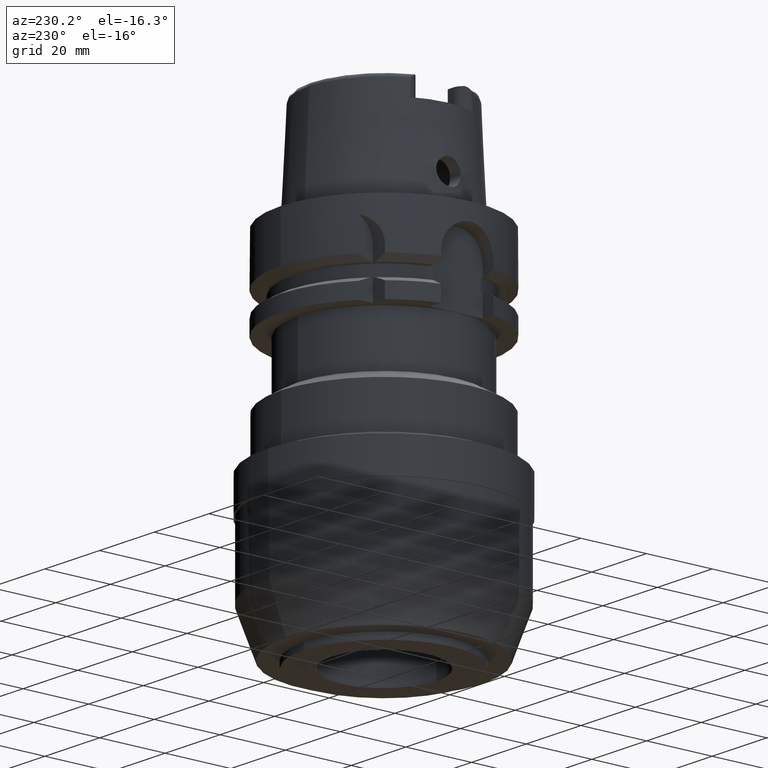
[diagram: clean part render]
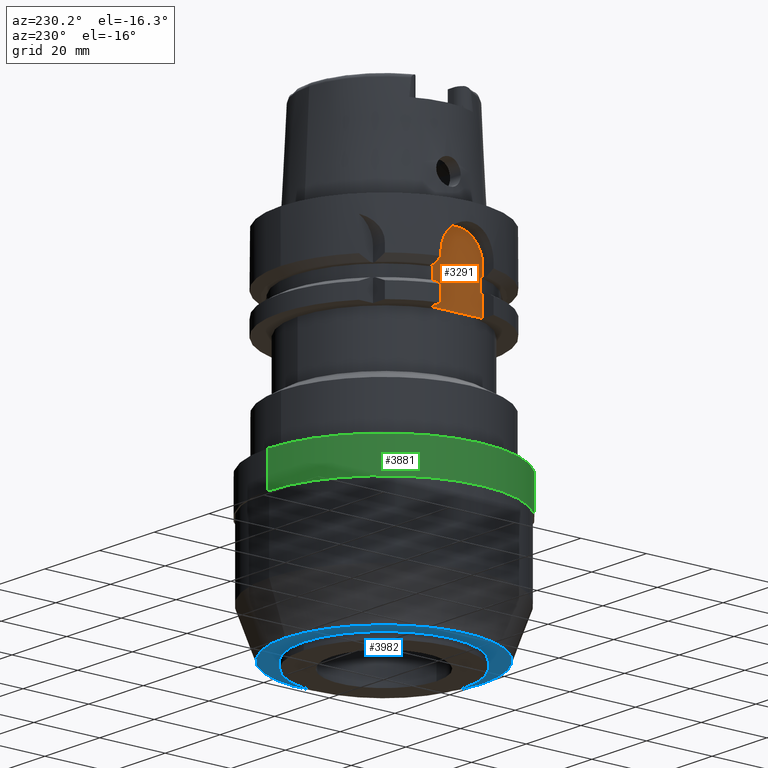
[diagram: same view with three faces highlighted in distinct colors, each labeled with its STEP entity id]
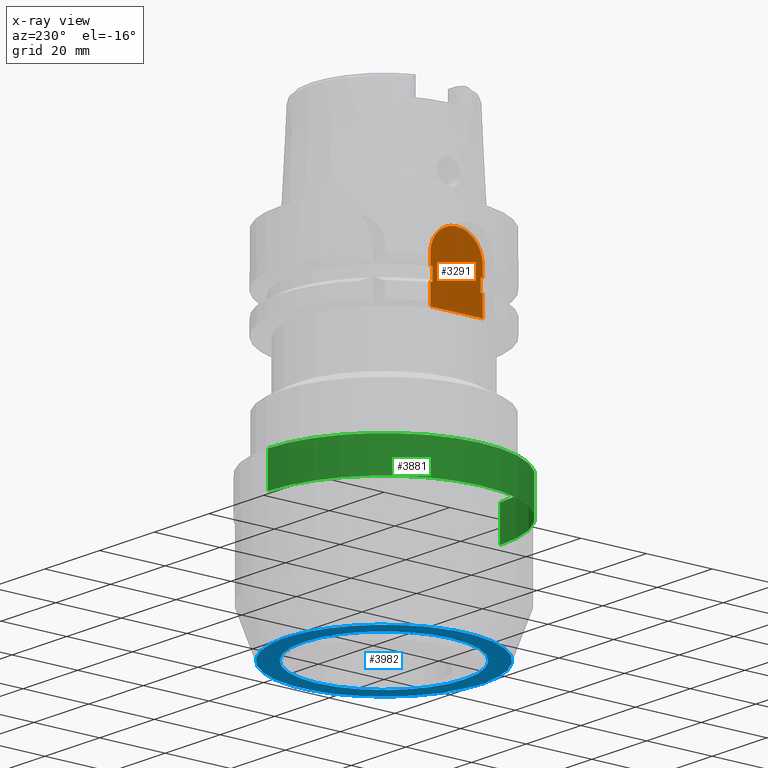
[diagram: x-ray of the same camera — body ghosted, the three highlighted faces saturated]
A machine part, auxiliary view with three faces highlighted in distinct colors.
The next image is the same camera in x-ray (body ghosted, the three faces saturated) — at least one of them is partly hidden behind the body in this view.
Their STEP definitions:

[orange] entity #3291 — the highlighted planar face has unit normal (1, 0, 0).
#838=DIRECTION('',(0.E0,0.E0,-1.E0));
#839=VECTOR('',#838,3.125E0);
#840=CARTESIAN_POINT('',(-2.65E1,8.E0,-1.3E1));
#841=LINE('',#840,#839);
#880=DIRECTION('',(0.E0,0.E0,1.E0));
#881=VECTOR('',#880,3.125E0);
#882=CARTESIAN_POINT('',(-2.65E1,-8.E0,-1.6125E1));
#883=LINE('',#882,#881);
#933=DIRECTION('',(0.E0,1.E0,0.E0));
#934=VECTOR('',#933,1.6E1);
#935=CARTESIAN_POINT('',(-2.65E1,-8.E0,-2.6E1));
#936=LINE('',#935,#934);
#940=DIRECTION('',(-5.998158823386E-14,1.E0,-1.635861497287E-14));
#941=VECTOR('',#940,6.515307716501E-1);
#942=CARTESIAN_POINT('',(-2.65E1,7.348469228350E0,-1.6125E1));
#943=LINE('',#942,#941);
#947=CARTESIAN_POINT('',(-2.65E1,0.E0,-1.3E1));
#948=DIRECTION('',(1.E0,0.E0,0.E0));
#949=DIRECTION('',(0.E0,1.E0,0.E0));
#950=AXIS2_PLACEMENT_3D('',#947,#948,#949);
#955=CARTESIAN_POINT('',(-2.65E1,0.E0,-1.3E1));
#956=DIRECTION('',(1.E0,0.E0,0.E0));
#957=DIRECTION('',(0.E0,0.E0,1.E0));
#958=AXIS2_PLACEMENT_3D('',#955,#956,#957);
#963=DIRECTION('',(5.998158823386E-14,1.E0,1.635861497287E-14));
#964=VECTOR('',#963,6.515307716501E-1);
#965=CARTESIAN_POINT('',(-2.65E1,-8.E0,-1.6125E1));
#966=LINE('',#965,#964);
#1188=DIRECTION('',(0.E0,0.E0,1.E0));
#1189=VECTOR('',#1188,6.125E0);
#1190=CARTESIAN_POINT('',(-2.65E1,-8.E0,-2.6E1));
#1191=LINE('',#1190,#1189);
#1212=DIRECTION('',(5.998158823386E-14,1.E0,1.635861497287E-14));
#1213=VECTOR('',#1212,6.515307716501E-1);
#1214=CARTESIAN_POINT('',(-2.65E1,-8.E0,-1.9875E1));
#1215=LINE('',#1214,#1213);
#1258=DIRECTION('',(0.E0,0.E0,1.E0));
#1259=VECTOR('',#1258,3.75E0);
#1260=CARTESIAN_POINT('',(-2.65E1,-7.348469228350E0,-1.9875E1));
#1261=LINE('',#1260,#1259);
#1442=DIRECTION('',(0.E0,0.E0,-1.E0));
#1443=VECTOR('',#1442,3.75E0);
#1444=CARTESIAN_POINT('',(-2.65E1,7.348469228350E0,-1.6125E1));
#1445=LINE('',#1444,#1443);
#1495=DIRECTION('',(-5.998158823386E-14,1.E0,-1.635861497287E-14));
#1496=VECTOR('',#1495,6.515307716501E-1);
#1497=CARTESIAN_POINT('',(-2.65E1,7.348469228350E0,-1.9875E1));
#1498=LINE('',#1497,#1496);
#1560=DIRECTION('',(0.E0,0.E0,-1.E0));
#1561=VECTOR('',#1560,6.125E0);
#1562=CARTESIAN_POINT('',(-2.65E1,8.E0,-1.9875E1));
#1563=LINE('',#1562,#1561);
#2550=CARTESIAN_POINT('',(-2.65E1,8.E0,-2.6E1));
#2551=VERTEX_POINT('',#2550);
#2552=CARTESIAN_POINT('',(-2.65E1,-8.E0,-2.6E1));
#2553=VERTEX_POINT('',#2552);
#2596=CARTESIAN_POINT('',(-2.65E1,-8.E0,-1.9875E1));
#2597=VERTEX_POINT('',#2596);
#2600=CARTESIAN_POINT('',(-2.65E1,-8.E0,-1.6125E1));
#2602=VERTEX_POINT('',#2600);
#2604=CARTESIAN_POINT('',(-2.65E1,-8.E0,-1.3E1));
#2605=VERTEX_POINT('',#2604);
#2610=CARTESIAN_POINT('',(-2.65E1,8.E0,-1.9875E1));
#2611=VERTEX_POINT('',#2610);
#2612=CARTESIAN_POINT('',(-2.65E1,7.348469228350E0,-1.9875E1));
#2613=VERTEX_POINT('',#2612);
#2614=CARTESIAN_POINT('',(-2.65E1,7.348469228350E0,-1.6125E1));
#2615=VERTEX_POINT('',#2614);
#2616=CARTESIAN_POINT('',(-2.65E1,8.E0,-1.6125E1));
#2617=VERTEX_POINT('',#2616);
#2618=CARTESIAN_POINT('',(-2.65E1,8.E0,-1.3E1));
#2619=VERTEX_POINT('',#2618);
#2620=CARTESIAN_POINT('',(-2.65E1,0.E0,-5.E0));
#2621=VERTEX_POINT('',#2620);
#2622=CARTESIAN_POINT('',(-2.65E1,-7.348469228350E0,-1.6125E1));
#2623=VERTEX_POINT('',#2622);
#2624=CARTESIAN_POINT('',(-2.65E1,-7.348469228350E0,-1.9875E1));
#2625=VERTEX_POINT('',#2624);
#3264=CARTESIAN_POINT('',(-2.65E1,0.E0,0.E0));
#3265=DIRECTION('',(1.E0,0.E0,0.E0));
#3266=DIRECTION('',(0.E0,0.E0,1.E0));
#3267=AXIS2_PLACEMENT_3D('',#3264,#3265,#3266);
#3268=PLANE('',#3267);
#3270=ORIENTED_EDGE('',*,*,#3269,.T.);
#3272=ORIENTED_EDGE('',*,*,#3271,.F.);
#3274=ORIENTED_EDGE('',*,*,#3273,.F.);
#3276=ORIENTED_EDGE('',*,*,#3275,.F.);
#3277=ORIENTED_EDGE('',*,*,#3138,.T.);
#3278=ORIENTED_EDGE('',*,*,#3204,.F.);
#3279=ORIENTED_EDGE('',*,*,#3219,.T.);
#3280=ORIENTED_EDGE('',*,*,#3217,.T.);
#3281=ORIENTED_EDGE('',*,*,#3232,.F.);
#3282=ORIENTED_EDGE('',*,*,#3246,.T.);
#3284=ORIENTED_EDGE('',*,*,#3283,.F.);
#3286=ORIENTED_EDGE('',*,*,#3285,.F.);
#3288=ORIENTED_EDGE('',*,*,#3287,.F.);
#3289=EDGE_LOOP('',(#3270,#3272,#3274,#3276,#3277,#3278,#3279,#3280,#3281,#3282,
#3284,#3286,#3288));
#3290=FACE_OUTER_BOUND('',#3289,.F.);
#951=CIRCLE('',#950,8.E0);
#959=CIRCLE('',#958,8.E0);
#3138=EDGE_CURVE('',#2615,#2617,#943,.T.);
#3204=EDGE_CURVE('',#2619,#2617,#841,.T.);
#3217=EDGE_CURVE('',#2621,#2605,#959,.T.);
#3219=EDGE_CURVE('',#2619,#2621,#951,.T.);
#3232=EDGE_CURVE('',#2602,#2605,#883,.T.);
#3246=EDGE_CURVE('',#2602,#2623,#966,.T.);
#3269=EDGE_CURVE('',#2553,#2551,#936,.T.);
#3271=EDGE_CURVE('',#2611,#2551,#1563,.T.);
#3273=EDGE_CURVE('',#2613,#2611,#1498,.T.);
#3275=EDGE_CURVE('',#2615,#2613,#1445,.T.);
#3283=EDGE_CURVE('',#2625,#2623,#1261,.T.);
#3285=EDGE_CURVE('',#2597,#2625,#1215,.T.);
#3287=EDGE_CURVE('',#2553,#2597,#1191,.T.);
#3291=ADVANCED_FACE('',(#3290),#3268,.F.);

[blue] entity #3982 — the highlighted planar face has unit normal (0, 0, 1).
#1839=CARTESIAN_POINT('',(0.E0,0.E0,-1.05E2));
#1840=DIRECTION('',(0.E0,0.E0,1.E0));
#1841=DIRECTION('',(0.E0,-1.E0,0.E0));
#1842=AXIS2_PLACEMENT_3D('',#1839,#1840,#1841);
#1847=CARTESIAN_POINT('',(0.E0,0.E0,-1.05E2));
#1848=DIRECTION('',(0.E0,0.E0,1.E0));
#1849=DIRECTION('',(0.E0,1.E0,0.E0));
#1850=AXIS2_PLACEMENT_3D('',#1847,#1848,#1849);
#1855=CARTESIAN_POINT('',(0.E0,0.E0,-1.05E2));
#1856=DIRECTION('',(0.E0,0.E0,-1.E0));
#1857=DIRECTION('',(0.E0,-1.E0,0.E0));
#1858=AXIS2_PLACEMENT_3D('',#1855,#1856,#1857);
#1863=CARTESIAN_POINT('',(0.E0,0.E0,-1.05E2));
#1864=DIRECTION('',(0.E0,0.E0,-1.E0));
#1865=DIRECTION('',(0.E0,1.E0,0.E0));
#1866=AXIS2_PLACEMENT_3D('',#1863,#1864,#1865);
#2498=CARTESIAN_POINT('',(0.E0,2.445E1,-1.05E2));
#2499=VERTEX_POINT('',#2498);
#2500=CARTESIAN_POINT('',(0.E0,-2.445E1,-1.05E2));
#2501=VERTEX_POINT('',#2500);
#2502=CARTESIAN_POINT('',(0.E0,-3.001360779056E1,-1.05E2));
#2503=CARTESIAN_POINT('',(0.E0,3.001360779056E1,-1.05E2));
#2504=VERTEX_POINT('',#2502);
#2505=VERTEX_POINT('',#2503);
#3967=CARTESIAN_POINT('',(0.E0,0.E0,-1.05E2));
#3968=DIRECTION('',(0.E0,0.E0,1.E0));
#3969=DIRECTION('',(0.E0,1.E0,0.E0));
#3970=AXIS2_PLACEMENT_3D('',#3967,#3968,#3969);
#3971=PLANE('',#3970);
#3972=ORIENTED_EDGE('',*,*,#3946,.T.);
#3973=ORIENTED_EDGE('',*,*,#3962,.T.);
#3974=EDGE_LOOP('',(#3972,#3973));
#3975=FACE_OUTER_BOUND('',#3974,.F.);
#3977=ORIENTED_EDGE('',*,*,#3976,.T.);
#3979=ORIENTED_EDGE('',*,*,#3978,.T.);
#3980=EDGE_LOOP('',(#3977,#3979));
#3981=FACE_BOUND('',#3980,.F.);
#1843=CIRCLE('',#1842,3.001360779056E1);
#1851=CIRCLE('',#1850,3.001360779056E1);
#1859=CIRCLE('',#1858,2.445E1);
#1867=CIRCLE('',#1866,2.445E1);
#3946=EDGE_CURVE('',#2504,#2505,#1843,.T.);
#3962=EDGE_CURVE('',#2505,#2504,#1851,.T.);
#3976=EDGE_CURVE('',#2501,#2499,#1859,.T.);
#3978=EDGE_CURVE('',#2499,#2501,#1867,.T.);
#3982=ADVANCED_FACE('',(#3975,#3981),#3971,.F.);

[green] entity #3881 — the highlighted cylindrical surface (partial cylindrical patch) has radius 35.35 mm, axis along (0, 0, 1).
#1717=CARTESIAN_POINT('',(0.E0,0.E0,-5.98E1));
#1718=DIRECTION('',(0.E0,0.E0,-1.E0));
#1719=DIRECTION('',(0.E0,-1.E0,0.E0));
#1720=AXIS2_PLACEMENT_3D('',#1717,#1718,#1719);
#1749=DIRECTION('',(0.E0,0.E0,-1.E0));
#1750=VECTOR('',#1749,1.04E1);
#1751=CARTESIAN_POINT('',(0.E0,-3.535E1,-5.98E1));
#1752=LINE('',#1751,#1750);
#1756=DIRECTION('',(0.E0,0.E0,-1.E0));
#1757=VECTOR('',#1756,1.04E1);
#1758=CARTESIAN_POINT('',(0.E0,3.535E1,-5.98E1));
#1759=LINE('',#1758,#1757);
#1771=CARTESIAN_POINT('',(0.E0,0.E0,-7.02E1));
#1772=DIRECTION('',(0.E0,0.E0,1.E0));
#1773=DIRECTION('',(0.E0,1.E0,0.E0));
#1774=AXIS2_PLACEMENT_3D('',#1771,#1772,#1773);
#2514=CARTESIAN_POINT('',(0.E0,-3.535E1,-7.02E1));
#2515=CARTESIAN_POINT('',(0.E0,3.535E1,-7.02E1));
#2516=VERTEX_POINT('',#2514);
#2517=VERTEX_POINT('',#2515);
#2518=CARTESIAN_POINT('',(0.E0,3.535E1,-5.98E1));
#2519=VERTEX_POINT('',#2518);
#2520=CARTESIAN_POINT('',(0.E0,-3.535E1,-5.98E1));
#2521=VERTEX_POINT('',#2520);
#3867=CARTESIAN_POINT('',(0.E0,0.E0,-1.1395E2));
#3868=DIRECTION('',(0.E0,0.E0,1.E0));
#3869=DIRECTION('',(0.E0,1.E0,0.E0));
#3870=AXIS2_PLACEMENT_3D('',#3867,#3868,#3869);
#3871=CYLINDRICAL_SURFACE('',#3870,3.535E1);
#3873=ORIENTED_EDGE('',*,*,#3872,.F.);
#3874=ORIENTED_EDGE('',*,*,#3856,.F.);
#3876=ORIENTED_EDGE('',*,*,#3875,.T.);
#3878=ORIENTED_EDGE('',*,*,#3877,.F.);
#3879=EDGE_LOOP('',(#3873,#3874,#3876,#3878));
#3880=FACE_OUTER_BOUND('',#3879,.F.);
#1721=CIRCLE('',#1720,3.535E1);
#1775=CIRCLE('',#1774,3.535E1);
#3856=EDGE_CURVE('',#2521,#2519,#1721,.T.);
#3872=EDGE_CURVE('',#2519,#2517,#1759,.T.);
#3875=EDGE_CURVE('',#2521,#2516,#1752,.T.);
#3877=EDGE_CURVE('',#2517,#2516,#1775,.T.);
#3881=ADVANCED_FACE('',(#3880),#3871,.T.);